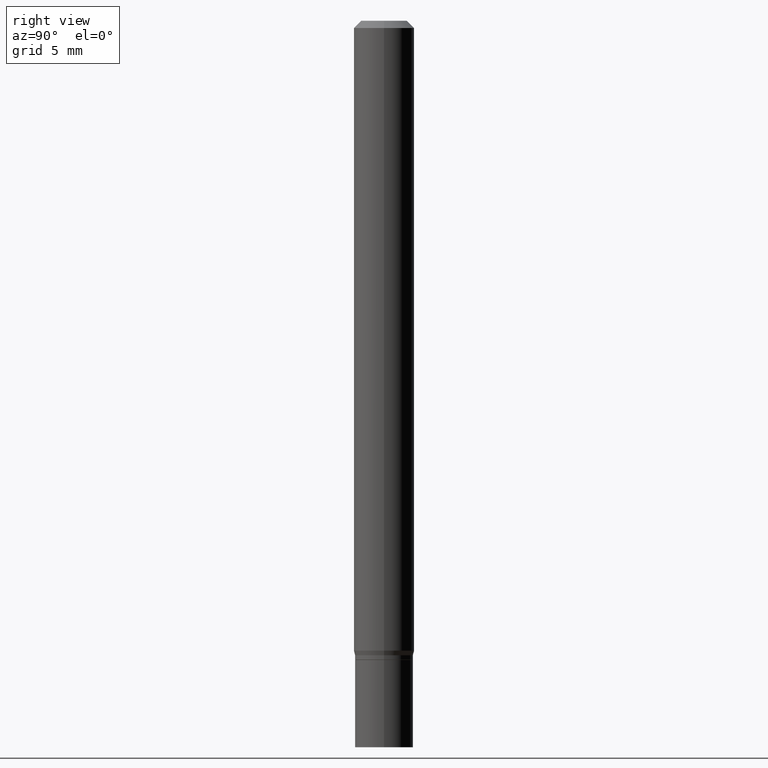
[diagram: clean part render]
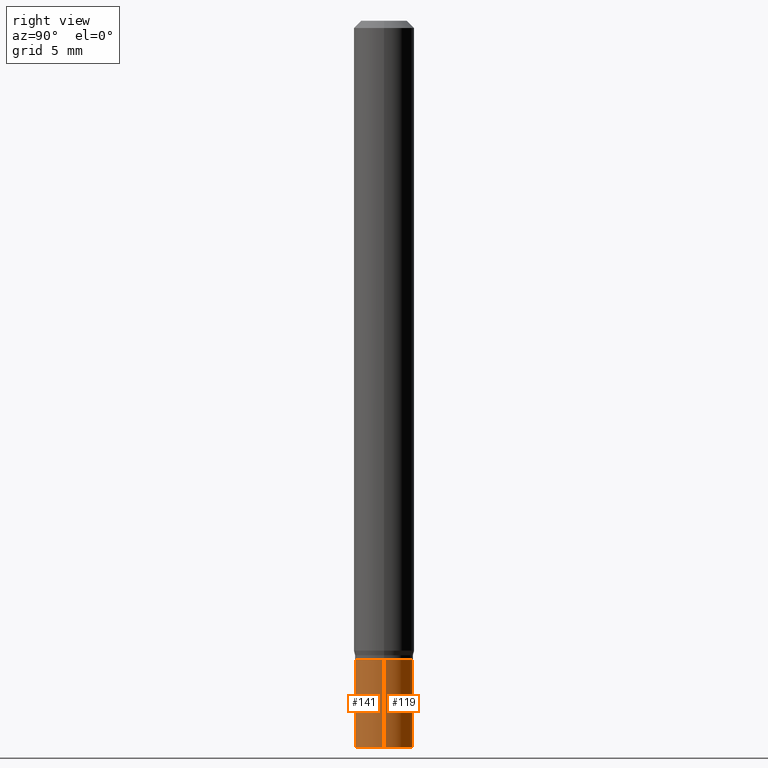
[diagram: same view with one multi-face feature highlighted, each face labeled with its STEP entity id]
A machine part, right view. The highlighted faces form ONE feature: a constant-radius fillet chain: 2 tangent blend faces with common blend radius 1.524 mm. The faces share edges in the B-rep.
Their STEP definitions:
[1] entity #141 (Cylinder):
#5 = VECTOR ( 'NONE', #364, 39.37007874015748143 ) ;
#10 = CIRCLE ( 'NONE', #137, 0.05999999999999999778 ) ;
#15 = EDGE_CURVE ( 'NONE', #50, #205, #10, .T. ) ;
#21 = DIRECTION ( 'NONE',  ( -2.445468806185136597E-29, 3.491481338843145583E-15, 1.000000000000000000 ) ) ;
#23 = ORIENTED_EDGE ( 'NONE', *, *, #15, .F. ) ;
#37 = ORIENTED_EDGE ( 'NONE', *, *, #320, .T. ) ;
#50 = VERTEX_POINT ( 'NONE', #64 ) ;
#64 = CARTESIAN_POINT ( 'NONE',  ( -0.05999999999999999778, -4.496663046312775211E-15, -1.320000000000000062 ) ) ;
#71 = AXIS2_PLACEMENT_3D ( 'NONE', #90, #21, #422 ) ;
#72 = EDGE_CURVE ( 'NONE', #184, #50, #251, .T. ) ;
#90 = CARTESIAN_POINT ( 'NONE',  ( 3.668203209277704895E-29, -5.237222008264718177E-15, -1.500000000000000222 ) ) ;
#117 = CARTESIAN_POINT ( 'NONE',  ( 0.000000000000000000, 0.000000000000000000, 0.000000000000000000 ) ) ;
#123 = VECTOR ( 'NONE', #225, 39.37007874015748143 ) ;
#137 = AXIS2_PLACEMENT_3D ( 'NONE', #207, #427, #322 ) ;
#141 = ADVANCED_FACE ( 'NONE', ( #150 ), #188, .T. ) ;
#150 = FACE_OUTER_BOUND ( 'NONE', #305, .T. ) ;
#163 = VERTEX_POINT ( 'NONE', #404 ) ;
#181 = CARTESIAN_POINT ( 'NONE',  ( -0.05999999999999999778, 4.263256414560600957E-16, -2.951361054152943413E-30 ) ) ;
#184 = VERTEX_POINT ( 'NONE', #373 ) ;
#188 = CYLINDRICAL_SURFACE ( 'NONE', #263, 0.05999999999999999778 ) ;
#190 = DIRECTION ( 'NONE',  ( -2.445468806185136597E-29, 3.491481338843145583E-15, 1.000000000000000000 ) ) ;
#205 = VERTEX_POINT ( 'NONE', #446 ) ;
#207 = CARTESIAN_POINT ( 'NONE',  ( 3.228018824164380442E-29, -4.608755367272952437E-15, -1.320000000000000062 ) ) ;
#217 = EDGE_CURVE ( 'NONE', #163, #205, #327, .T. ) ;
#218 = DIRECTION ( 'NONE',  ( 1.000000000000000000, -6.982962677686267499E-15, 4.876176775795936353E-29 ) ) ;
#225 = DIRECTION ( 'NONE',  ( -2.445468806185136877E-29, 3.491481338843145188E-15, 1.000000000000000000 ) ) ;
#251 = LINE ( 'NONE', #181, #5 ) ;
#263 = AXIS2_PLACEMENT_3D ( 'NONE', #117, #190, #218 ) ;
#290 = CIRCLE ( 'NONE', #71, 0.05999999999999999778 ) ;
#305 = EDGE_LOOP ( 'NONE', ( #430, #37, #455, #23 ) ) ;
#320 = EDGE_CURVE ( 'NONE', #184, #163, #290, .T. ) ;
#322 = DIRECTION ( 'NONE',  ( 1.000000000000000000, -6.982962677686268288E-15, 0.000000000000000000 ) ) ;
#327 = LINE ( 'NONE', #410, #123 ) ;
#364 = DIRECTION ( 'NONE',  ( -2.445468806185136877E-29, 3.491481338843145188E-15, 1.000000000000000000 ) ) ;
#373 = CARTESIAN_POINT ( 'NONE',  ( -0.05999999999999999778, -4.496663046312775211E-15, -1.500000000000000222 ) ) ;
#404 = CARTESIAN_POINT ( 'NONE',  ( 0.05999999999999999778, -5.656199768925894810E-15, -1.500000000000000222 ) ) ;
#410 = CARTESIAN_POINT ( 'NONE',  ( 0.05999999999999999778, -4.189777606611760421E-16, 2.925706065477561756E-30 ) ) ;
#422 = DIRECTION ( 'NONE',  ( 1.000000000000000000, -6.982962677686268288E-15, 0.000000000000000000 ) ) ;
#427 = DIRECTION ( 'NONE',  ( -2.445468806185136597E-29, 3.491481338843145583E-15, 1.000000000000000000 ) ) ;
#430 = ORIENTED_EDGE ( 'NONE', *, *, #72, .F. ) ;
#446 = CARTESIAN_POINT ( 'NONE',  ( 0.05999999999999999778, -5.027733127934128282E-15, -1.320000000000000062 ) ) ;
#455 = ORIENTED_EDGE ( 'NONE', *, *, #217, .T. ) ;
[2] entity #119 (Cylinder):
#5 = VECTOR ( 'NONE', #364, 39.37007874015748143 ) ;
#50 = VERTEX_POINT ( 'NONE', #64 ) ;
#64 = CARTESIAN_POINT ( 'NONE',  ( -0.05999999999999999778, -4.496663046312775211E-15, -1.320000000000000062 ) ) ;
#69 = AXIS2_PLACEMENT_3D ( 'NONE', #79, #223, #370 ) ;
#72 = EDGE_CURVE ( 'NONE', #184, #50, #251, .T. ) ;
#79 = CARTESIAN_POINT ( 'NONE',  ( 3.668203209277704895E-29, -5.237222008264718177E-15, -1.500000000000000222 ) ) ;
#96 = DIRECTION ( 'NONE',  ( 1.000000000000000000, -6.982962677686267499E-15, 4.876176775795936353E-29 ) ) ;
#103 = CARTESIAN_POINT ( 'NONE',  ( 0.000000000000000000, 0.000000000000000000, 0.000000000000000000 ) ) ;
#119 = ADVANCED_FACE ( 'NONE', ( #279 ), #360, .T. ) ;
#120 = ORIENTED_EDGE ( 'NONE', *, *, #72, .T. ) ;
#123 = VECTOR ( 'NONE', #225, 39.37007874015748143 ) ;
#163 = VERTEX_POINT ( 'NONE', #404 ) ;
#181 = CARTESIAN_POINT ( 'NONE',  ( -0.05999999999999999778, 4.263256414560600957E-16, -2.951361054152943413E-30 ) ) ;
#184 = VERTEX_POINT ( 'NONE', #373 ) ;
#199 = DIRECTION ( 'NONE',  ( -2.445468806185136597E-29, 3.491481338843145583E-15, 1.000000000000000000 ) ) ;
#205 = VERTEX_POINT ( 'NONE', #446 ) ;
#217 = EDGE_CURVE ( 'NONE', #163, #205, #327, .T. ) ;
#223 = DIRECTION ( 'NONE',  ( -2.445468806185136597E-29, 3.491481338843145583E-15, 1.000000000000000000 ) ) ;
#225 = DIRECTION ( 'NONE',  ( -2.445468806185136877E-29, 3.491481338843145188E-15, 1.000000000000000000 ) ) ;
#251 = LINE ( 'NONE', #181, #5 ) ;
#255 = EDGE_CURVE ( 'NONE', #163, #184, #368, .T. ) ;
#262 = EDGE_LOOP ( 'NONE', ( #419, #120, #310, #453 ) ) ;
#279 = FACE_OUTER_BOUND ( 'NONE', #262, .T. ) ;
#301 = CARTESIAN_POINT ( 'NONE',  ( 3.228018824164380442E-29, -4.608755367272952437E-15, -1.320000000000000062 ) ) ;
#310 = ORIENTED_EDGE ( 'NONE', *, *, #403, .F. ) ;
#327 = LINE ( 'NONE', #410, #123 ) ;
#360 = CYLINDRICAL_SURFACE ( 'NONE', #465, 0.05999999999999999778 ) ;
#364 = DIRECTION ( 'NONE',  ( -2.445468806185136877E-29, 3.491481338843145188E-15, 1.000000000000000000 ) ) ;
#368 = CIRCLE ( 'NONE', #69, 0.05999999999999999778 ) ;
#370 = DIRECTION ( 'NONE',  ( 1.000000000000000000, -6.982962677686268288E-15, 0.000000000000000000 ) ) ;
#373 = CARTESIAN_POINT ( 'NONE',  ( -0.05999999999999999778, -4.496663046312775211E-15, -1.500000000000000222 ) ) ;
#403 = EDGE_CURVE ( 'NONE', #205, #50, #431, .T. ) ;
#404 = CARTESIAN_POINT ( 'NONE',  ( 0.05999999999999999778, -5.656199768925894810E-15, -1.500000000000000222 ) ) ;
#410 = CARTESIAN_POINT ( 'NONE',  ( 0.05999999999999999778, -4.189777606611760421E-16, 2.925706065477561756E-30 ) ) ;
#417 = AXIS2_PLACEMENT_3D ( 'NONE', #301, #199, #447 ) ;
#419 = ORIENTED_EDGE ( 'NONE', *, *, #255, .T. ) ;
#428 = DIRECTION ( 'NONE',  ( -2.445468806185136597E-29, 3.491481338843145583E-15, 1.000000000000000000 ) ) ;
#431 = CIRCLE ( 'NONE', #417, 0.05999999999999999778 ) ;
#446 = CARTESIAN_POINT ( 'NONE',  ( 0.05999999999999999778, -5.027733127934128282E-15, -1.320000000000000062 ) ) ;
#447 = DIRECTION ( 'NONE',  ( 1.000000000000000000, -6.982962677686268288E-15, 0.000000000000000000 ) ) ;
#453 = ORIENTED_EDGE ( 'NONE', *, *, #217, .F. ) ;
#465 = AXIS2_PLACEMENT_3D ( 'NONE', #103, #428, #96 ) ;